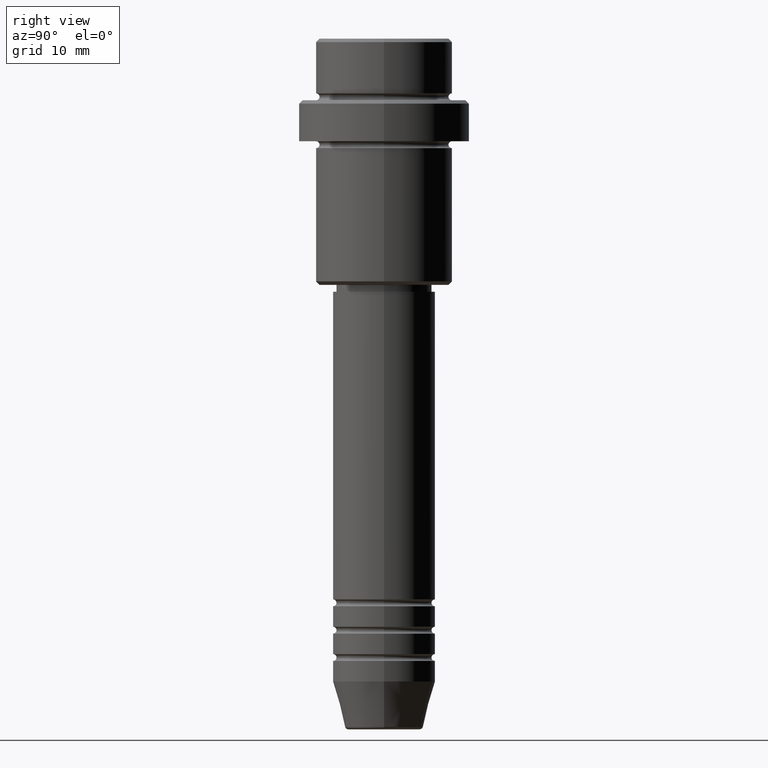
[diagram: clean part render]
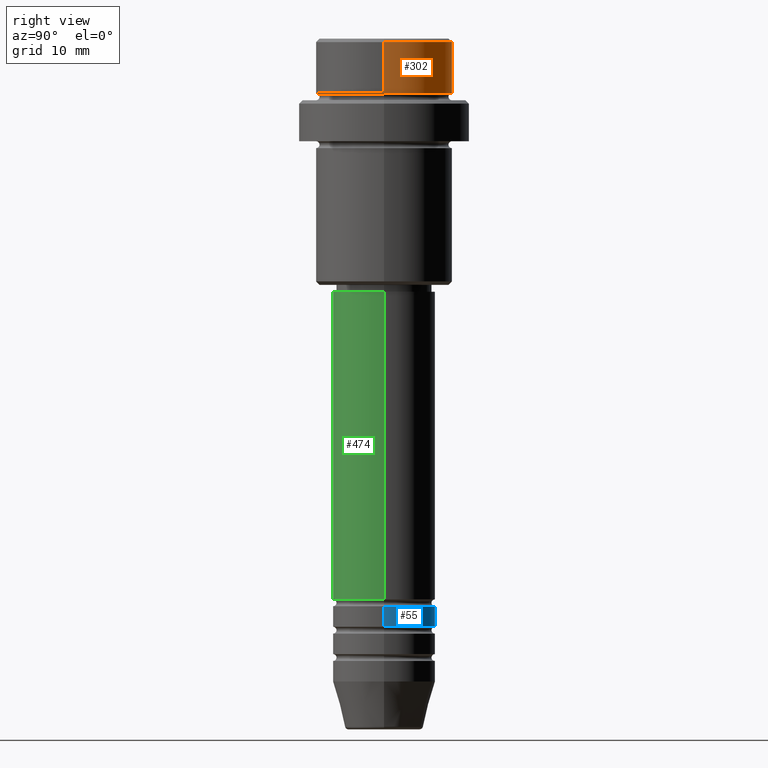
[diagram: same view with three faces highlighted in distinct colors, each labeled with its STEP entity id]
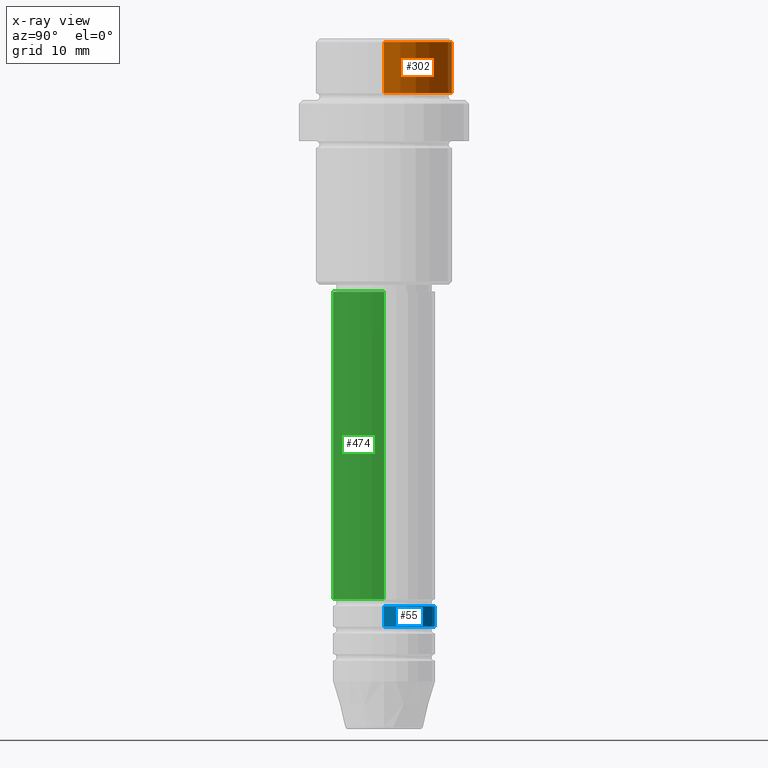
[diagram: x-ray of the same camera — body ghosted, the three highlighted faces saturated]
A machine part, right view with three faces highlighted in distinct colors.
The next image is the same camera in x-ray (body ghosted, the three faces saturated) — at least one of them is partly hidden behind the body in this view.
Their STEP definitions:

[orange] entity #302 — the highlighted cylindrical surface (partial cylindrical patch) has radius 10 mm, axis along (-0, -0, 1).
#11 = CARTESIAN_POINT ( 'NONE',  ( 0.000000000000000000, 0.000000000000000000, -7.999999999999998224 ) ) ;
#18 = LINE ( 'NONE', #872, #1170 ) ;
#61 = FACE_OUTER_BOUND ( 'NONE', #1357, .T. ) ;
#66 = AXIS2_PLACEMENT_3D ( 'NONE', #11, #451, #888 ) ;
#68 = AXIS2_PLACEMENT_3D ( 'NONE', #940, #170, #1022 ) ;
#112 = EDGE_CURVE ( 'NONE', #317, #766, #1060, .T. ) ;
#129 = CIRCLE ( 'NONE', #945, 9.999999999999998224 ) ;
#170 = DIRECTION ( 'NONE',  ( -0.000000000000000000, -0.000000000000000000, 1.000000000000000000 ) ) ;
#179 = CARTESIAN_POINT ( 'NONE',  ( 9.999999999999998224, 0.000000000000000000, -0.4999999999999970024 ) ) ;
#302 = ADVANCED_FACE ( 'NONE', ( #61 ), #503, .T. ) ;
#304 = CARTESIAN_POINT ( 'NONE',  ( -9.999999999999998224, 1.224646799147353059E-15, -0.4999999999999970024 ) ) ;
#317 = VERTEX_POINT ( 'NONE', #1289 ) ;
#319 = VECTOR ( 'NONE', #520, 1000.000000000000000 ) ;
#404 = LINE ( 'NONE', #746, #319 ) ;
#413 = DIRECTION ( 'NONE',  ( 1.000000000000000000, 0.000000000000000000, 0.000000000000000000 ) ) ;
#451 = DIRECTION ( 'NONE',  ( -0.000000000000000000, -0.000000000000000000, 1.000000000000000000 ) ) ;
#503 = CYLINDRICAL_SURFACE ( 'NONE', #68, 9.999999999999998224 ) ;
#515 = EDGE_CURVE ( 'NONE', #766, #1204, #404, .T. ) ;
#520 = DIRECTION ( 'NONE',  ( -0.000000000000000000, -0.000000000000000000, 1.000000000000000000 ) ) ;
#613 = ORIENTED_EDGE ( 'NONE', *, *, #1291, .F. ) ;
#680 = ORIENTED_EDGE ( 'NONE', *, *, #774, .T. ) ;
#722 = VERTEX_POINT ( 'NONE', #179 ) ;
#746 = CARTESIAN_POINT ( 'NONE',  ( -9.999999999999998224, 1.224646799147353059E-15, 0.000000000000000000 ) ) ;
#766 = VERTEX_POINT ( 'NONE', #938 ) ;
#774 = EDGE_CURVE ( 'NONE', #1204, #722, #129, .T. ) ;
#872 = CARTESIAN_POINT ( 'NONE',  ( 9.999999999999998224, 0.000000000000000000, 0.000000000000000000 ) ) ;
#888 = DIRECTION ( 'NONE',  ( 1.000000000000000000, 0.000000000000000000, 0.000000000000000000 ) ) ;
#936 = ORIENTED_EDGE ( 'NONE', *, *, #515, .T. ) ;
#938 = CARTESIAN_POINT ( 'NONE',  ( -9.999999999999998224, 1.224646799147353059E-15, -7.999999999999998224 ) ) ;
#940 = CARTESIAN_POINT ( 'NONE',  ( 0.000000000000000000, 0.000000000000000000, 0.000000000000000000 ) ) ;
#945 = AXIS2_PLACEMENT_3D ( 'NONE', #1362, #1390, #413 ) ;
#1022 = DIRECTION ( 'NONE',  ( 1.000000000000000000, 0.000000000000000000, 0.000000000000000000 ) ) ;
#1047 = ORIENTED_EDGE ( 'NONE', *, *, #112, .T. ) ;
#1060 = CIRCLE ( 'NONE', #66, 9.999999999999998224 ) ;
#1092 = DIRECTION ( 'NONE',  ( -0.000000000000000000, -0.000000000000000000, 1.000000000000000000 ) ) ;
#1170 = VECTOR ( 'NONE', #1092, 1000.000000000000000 ) ;
#1204 = VERTEX_POINT ( 'NONE', #304 ) ;
#1289 = CARTESIAN_POINT ( 'NONE',  ( 9.999999999999998224, 0.000000000000000000, -7.999999999999998224 ) ) ;
#1291 = EDGE_CURVE ( 'NONE', #317, #722, #18, .T. ) ;
#1357 = EDGE_LOOP ( 'NONE', ( #1047, #936, #680, #613 ) ) ;
#1362 = CARTESIAN_POINT ( 'NONE',  ( 0.000000000000000000, 0.000000000000000000, -0.4999999999999970024 ) ) ;
#1390 = DIRECTION ( 'NONE',  ( 0.000000000000000000, 0.000000000000000000, -1.000000000000000000 ) ) ;

[blue] entity #55 — the highlighted cylindrical surface (partial cylindrical patch) has radius 7.5 mm, axis along (-0, -0, 1).
#55 = ADVANCED_FACE ( 'NONE', ( #1117 ), #1025, .T. ) ;
#57 = ORIENTED_EDGE ( 'NONE', *, *, #505, .F. ) ;
#87 = DIRECTION ( 'NONE',  ( -0.000000000000000000, -0.000000000000000000, 1.000000000000000000 ) ) ;
#161 = VERTEX_POINT ( 'NONE', #1094 ) ;
#289 = EDGE_CURVE ( 'NONE', #161, #931, #1264, .T. ) ;
#396 = CARTESIAN_POINT ( 'NONE',  ( 7.500000000000000000, 0.000000000000000000, 0.000000000000000000 ) ) ;
#432 = CARTESIAN_POINT ( 'NONE',  ( 0.000000000000000000, 0.000000000000000000, -82.99999999999988631 ) ) ;
#505 = EDGE_CURVE ( 'NONE', #931, #630, #1144, .T. ) ;
#514 = DIRECTION ( 'NONE',  ( -0.000000000000000000, -0.000000000000000000, 1.000000000000000000 ) ) ;
#630 = VERTEX_POINT ( 'NONE', #1265 ) ;
#666 = VECTOR ( 'NONE', #1152, 1000.000000000000000 ) ;
#710 = AXIS2_PLACEMENT_3D ( 'NONE', #432, #514, #1303 ) ;
#711 = CIRCLE ( 'NONE', #1039, 7.500000000000000000 ) ;
#744 = ORIENTED_EDGE ( 'NONE', *, *, #769, .T. ) ;
#769 = EDGE_CURVE ( 'NONE', #161, #1084, #711, .T. ) ;
#789 = DIRECTION ( 'NONE',  ( -0.000000000000000000, -0.000000000000000000, 1.000000000000000000 ) ) ;
#852 = AXIS2_PLACEMENT_3D ( 'NONE', #1218, #789, #1221 ) ;
#884 = ORIENTED_EDGE ( 'NONE', *, *, #289, .F. ) ;
#931 = VERTEX_POINT ( 'NONE', #1378 ) ;
#950 = CARTESIAN_POINT ( 'NONE',  ( 0.000000000000000000, 0.000000000000000000, -85.99999999999988631 ) ) ;
#962 = LINE ( 'NONE', #1287, #1041 ) ;
#1025 = CYLINDRICAL_SURFACE ( 'NONE', #852, 7.500000000000000000 ) ;
#1031 = EDGE_LOOP ( 'NONE', ( #744, #1295, #57, #884 ) ) ;
#1039 = AXIS2_PLACEMENT_3D ( 'NONE', #950, #1056, #1373 ) ;
#1041 = VECTOR ( 'NONE', #87, 1000.000000000000000 ) ;
#1056 = DIRECTION ( 'NONE',  ( -0.000000000000000000, -0.000000000000000000, 1.000000000000000000 ) ) ;
#1084 = VERTEX_POINT ( 'NONE', #1252 ) ;
#1094 = CARTESIAN_POINT ( 'NONE',  ( 7.500000000000000000, 0.000000000000000000, -85.99999999999988631 ) ) ;
#1117 = FACE_OUTER_BOUND ( 'NONE', #1031, .T. ) ;
#1144 = CIRCLE ( 'NONE', #710, 7.500000000000000000 ) ;
#1152 = DIRECTION ( 'NONE',  ( -0.000000000000000000, -0.000000000000000000, 1.000000000000000000 ) ) ;
#1202 = EDGE_CURVE ( 'NONE', #1084, #630, #962, .T. ) ;
#1218 = CARTESIAN_POINT ( 'NONE',  ( 0.000000000000000000, 0.000000000000000000, 0.000000000000000000 ) ) ;
#1221 = DIRECTION ( 'NONE',  ( 1.000000000000000000, 0.000000000000000000, 0.000000000000000000 ) ) ;
#1252 = CARTESIAN_POINT ( 'NONE',  ( -7.500000000000000000, 9.184850993605147944E-16, -85.99999999999988631 ) ) ;
#1264 = LINE ( 'NONE', #396, #666 ) ;
#1265 = CARTESIAN_POINT ( 'NONE',  ( -7.500000000000000000, 9.184850993605147944E-16, -82.99999999999988631 ) ) ;
#1287 = CARTESIAN_POINT ( 'NONE',  ( -7.500000000000000000, 9.184850993605147944E-16, 0.000000000000000000 ) ) ;
#1295 = ORIENTED_EDGE ( 'NONE', *, *, #1202, .T. ) ;
#1303 = DIRECTION ( 'NONE',  ( 1.000000000000000000, 0.000000000000000000, 0.000000000000000000 ) ) ;
#1373 = DIRECTION ( 'NONE',  ( 1.000000000000000000, 0.000000000000000000, 0.000000000000000000 ) ) ;
#1378 = CARTESIAN_POINT ( 'NONE',  ( 7.500000000000000000, 0.000000000000000000, -82.99999999999988631 ) ) ;

[green] entity #474 — the highlighted cylindrical surface (partial cylindrical patch) has radius 7.5 mm, axis along (-0, -0, 1).
#3 = AXIS2_PLACEMENT_3D ( 'NONE', #1332, #355, #1019 ) ;
#6 = CARTESIAN_POINT ( 'NONE',  ( -7.500000000000000000, 9.184850993605147944E-16, -81.99999999999987210 ) ) ;
#31 = CARTESIAN_POINT ( 'NONE',  ( -7.500000000000000000, 9.184850993605147944E-16, 0.000000000000000000 ) ) ;
#52 = VERTEX_POINT ( 'NONE', #350 ) ;
#96 = AXIS2_PLACEMENT_3D ( 'NONE', #139, #268, #1116 ) ;
#130 = FACE_OUTER_BOUND ( 'NONE', #864, .T. ) ;
#139 = CARTESIAN_POINT ( 'NONE',  ( 0.000000000000000000, 0.000000000000000000, -81.99999999999987210 ) ) ;
#251 = DIRECTION ( 'NONE',  ( -0.000000000000000000, -0.000000000000000000, 1.000000000000000000 ) ) ;
#268 = DIRECTION ( 'NONE',  ( -0.000000000000000000, -0.000000000000000000, 1.000000000000000000 ) ) ;
#350 = CARTESIAN_POINT ( 'NONE',  ( -7.500000000000000000, 9.184850993605147944E-16, -36.99999999999998579 ) ) ;
#355 = DIRECTION ( 'NONE',  ( -0.000000000000000000, -0.000000000000000000, 1.000000000000000000 ) ) ;
#364 = LINE ( 'NONE', #31, #1236 ) ;
#377 = ORIENTED_EDGE ( 'NONE', *, *, #1406, .F. ) ;
#474 = ADVANCED_FACE ( 'NONE', ( #130 ), #682, .T. ) ;
#492 = LINE ( 'NONE', #932, #924 ) ;
#532 = AXIS2_PLACEMENT_3D ( 'NONE', #639, #1384, #952 ) ;
#637 = ORIENTED_EDGE ( 'NONE', *, *, #1078, .T. ) ;
#639 = CARTESIAN_POINT ( 'NONE',  ( 0.000000000000000000, 0.000000000000000000, -36.99999999999998579 ) ) ;
#682 = CYLINDRICAL_SURFACE ( 'NONE', #3, 7.500000000000000000 ) ;
#824 = EDGE_CURVE ( 'NONE', #52, #871, #880, .T. ) ;
#860 = ORIENTED_EDGE ( 'NONE', *, *, #824, .F. ) ;
#864 = EDGE_LOOP ( 'NONE', ( #377, #1253, #637, #860 ) ) ;
#871 = VERTEX_POINT ( 'NONE', #970 ) ;
#880 = CIRCLE ( 'NONE', #532, 7.500000000000000000 ) ;
#924 = VECTOR ( 'NONE', #1355, 1000.000000000000000 ) ;
#932 = CARTESIAN_POINT ( 'NONE',  ( 7.500000000000000000, 0.000000000000000000, 0.000000000000000000 ) ) ;
#952 = DIRECTION ( 'NONE',  ( 1.000000000000000000, 0.000000000000000000, 0.000000000000000000 ) ) ;
#970 = CARTESIAN_POINT ( 'NONE',  ( 7.500000000000000000, 0.000000000000000000, -36.99999999999998579 ) ) ;
#990 = EDGE_CURVE ( 'NONE', #1363, #995, #1167, .T. ) ;
#995 = VERTEX_POINT ( 'NONE', #1027 ) ;
#1019 = DIRECTION ( 'NONE',  ( 1.000000000000000000, 0.000000000000000000, 0.000000000000000000 ) ) ;
#1027 = CARTESIAN_POINT ( 'NONE',  ( 7.500000000000000000, 0.000000000000000000, -81.99999999999987210 ) ) ;
#1078 = EDGE_CURVE ( 'NONE', #995, #871, #492, .T. ) ;
#1116 = DIRECTION ( 'NONE',  ( 1.000000000000000000, 0.000000000000000000, 0.000000000000000000 ) ) ;
#1167 = CIRCLE ( 'NONE', #96, 7.500000000000000000 ) ;
#1236 = VECTOR ( 'NONE', #251, 1000.000000000000000 ) ;
#1253 = ORIENTED_EDGE ( 'NONE', *, *, #990, .T. ) ;
#1332 = CARTESIAN_POINT ( 'NONE',  ( 0.000000000000000000, 0.000000000000000000, 0.000000000000000000 ) ) ;
#1355 = DIRECTION ( 'NONE',  ( -0.000000000000000000, -0.000000000000000000, 1.000000000000000000 ) ) ;
#1363 = VERTEX_POINT ( 'NONE', #6 ) ;
#1384 = DIRECTION ( 'NONE',  ( -0.000000000000000000, -0.000000000000000000, 1.000000000000000000 ) ) ;
#1406 = EDGE_CURVE ( 'NONE', #1363, #52, #364, .T. ) ;